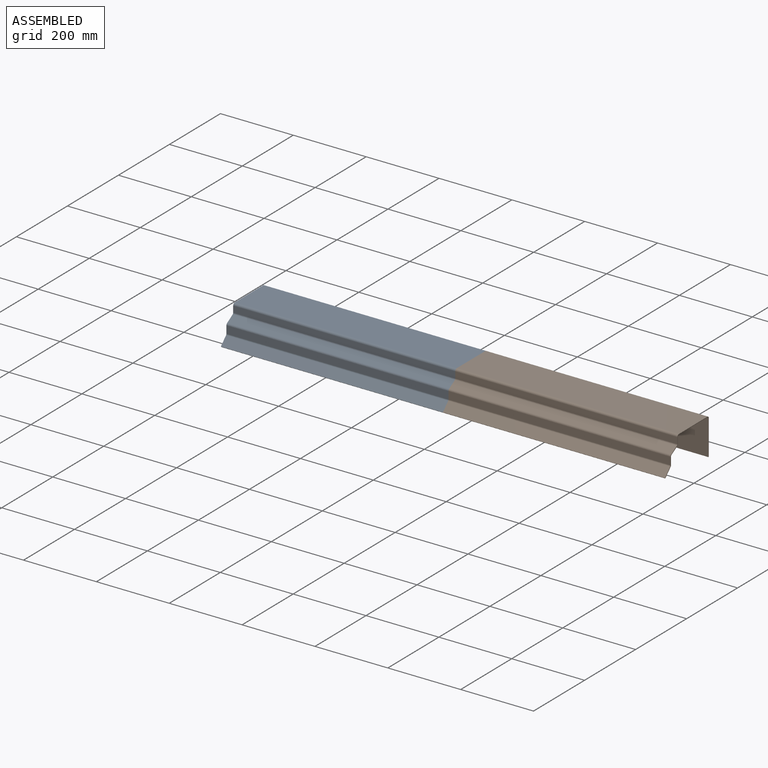
[diagram: assembled view]
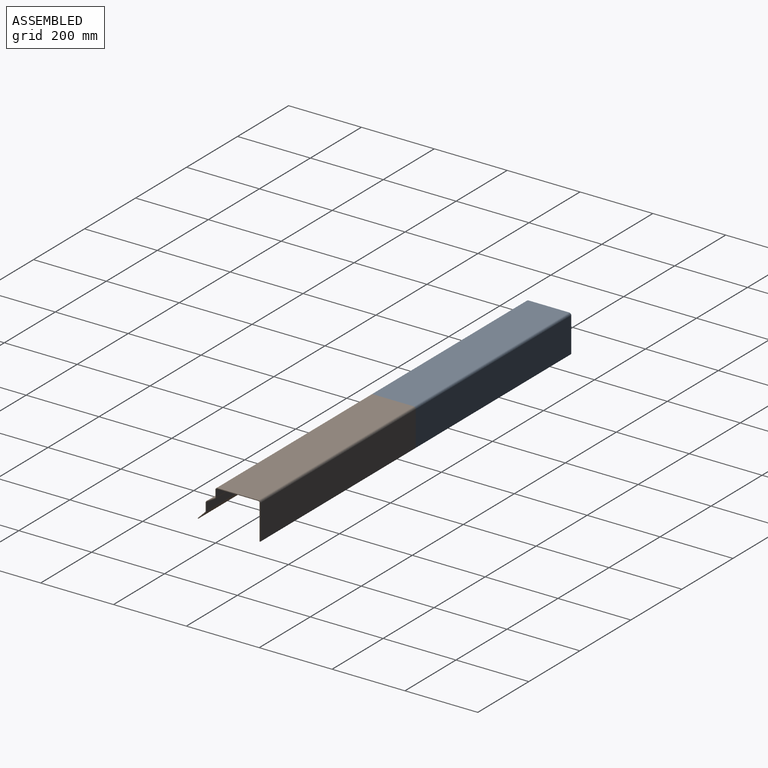
[diagram: assembled view, second angle]
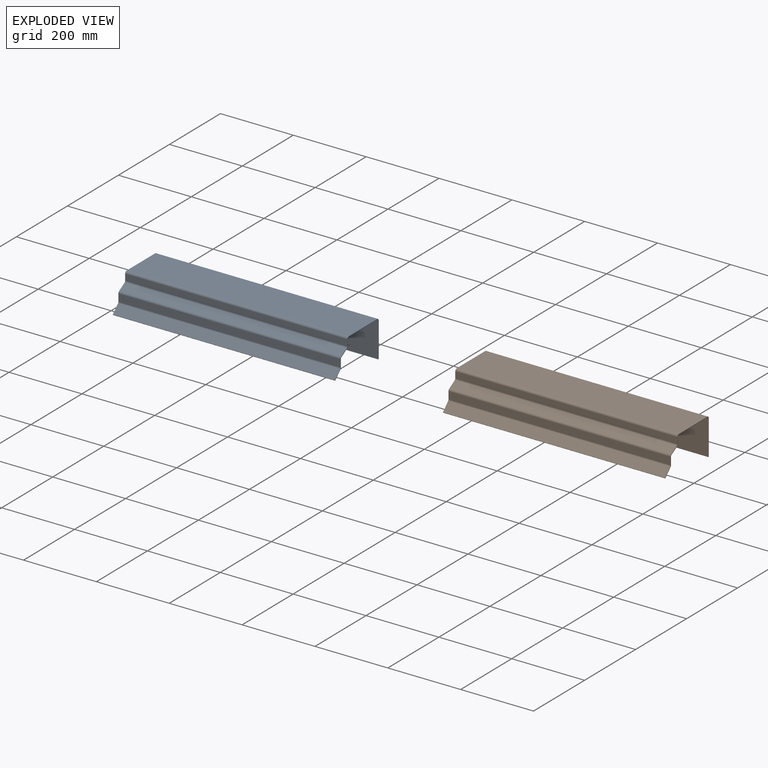
[diagram: exploded view]
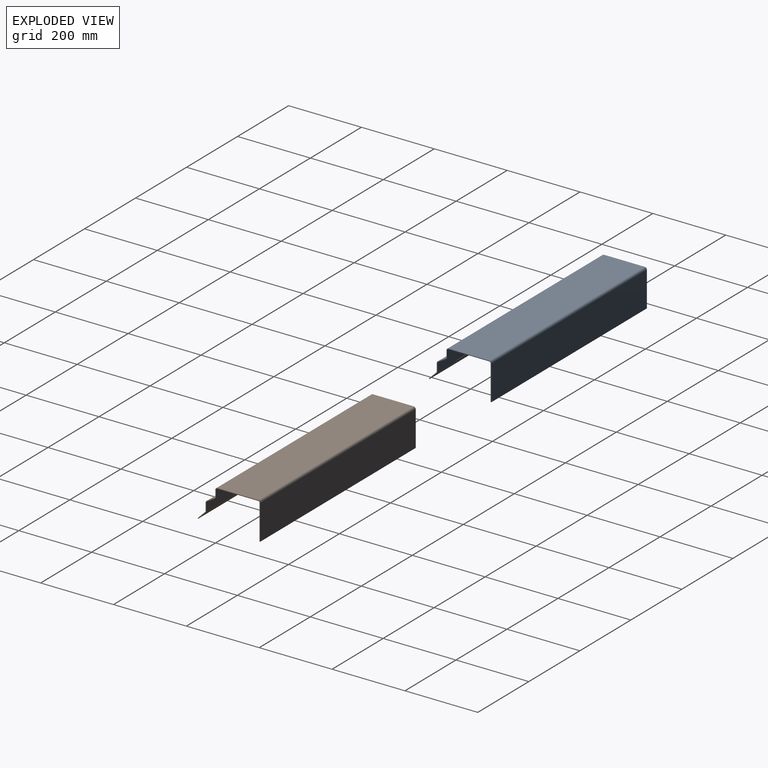
[diagram: exploded view, second angle]
ASSEMBLY  parts=2 mates=3
PART A: 46 faces, bbox 609.6x171.8x101.6 mm
  f0: plane 111.87x1.9mm, normal (-1,0,0), area 212.3mm2, adj f2,f3,f34,f43
  f1: plane 111.87x1.9mm, normal (1,0,0), area 212.3mm2, adj f2,f3,f33,f42
  f2: plane 609.6x111.87mm, normal (0,0,1), area 68197.2mm2, adj f0,f1,f35,f44
  f3: plane 609.6x111.87mm, normal (0,0,-1), area 68197.2mm2, adj f0,f1,f36,f45
  f4: plane 17.55x1.9mm, normal (-1,0,0), area 33.3mm2, adj f6,f7,f30,f34
  f5: plane 17.55x1.9mm, normal (1,0,0), area 33.3mm2, adj f6,f7,f29,f33
  f6: plane 609.6x17.55mm, normal (0,-1,0), area 10697.7mm2, adj f4,f5,f32,f35
  f7: plane 609.6x17.55mm, normal (0,1,0), area 10697.7mm2, adj f4,f5,f31,f36
  f8: plane 22.96x14.77mm, normal (-1,0,0), area 48.6mm2, adj f10,f11,f26,f30
  f9: plane 22.96x14.77mm, normal (1,0,0), area 48.6mm2, adj f10,f11,f25,f29
  f10: plane 609.6x21.99mm, normal (0,-0.51,0.86), area 15616.5mm2, adj f8,f9,f27,f32
  f11: plane 609.6x21.99mm, normal (0,0.51,-0.86), area 15616.5mm2, adj f8,f9,f28,f31
  f12: plane 20.86x1.9mm, normal (-1,0,0), area 39.6mm2, adj f14,f15,f22,f26
  f13: plane 20.86x1.9mm, normal (1,0,0), area 39.6mm2, adj f14,f15,f21,f25
  f14: plane 609.6x20.86mm, normal (0,-1,0), area 12714.3mm2, adj f12,f13,f24,f27
  f15: plane 609.6x20.86mm, normal (0,1,0), area 12714.3mm2, adj f12,f13,f23,f28
  f16: plane 609.6x1.34mm, normal (0,-0.71,-0.71), area 1156.6mm2, adj f17,f18,f19,f20
  f17: plane 22.12x22.12mm, normal (1,0,0), area 55.8mm2, adj f16,f19,f20,f21
  f18: plane 22.12x22.12mm, normal (-1,0,0), area 55.8mm2, adj f16,f19,f20,f22
  f19: plane 609.6x20.78mm, normal (0,-0.71,0.71), area 17913.7mm2, adj f16,f17,f18,f24
  f20: plane 609.6x20.78mm, normal (0,0.71,-0.71), area 17913.7mm2, adj f16,f17,f18,f23
  f21: plane 4.04x3.01mm, normal (1,0,0), area 7.1mm2, adj f13,f17,f23,f24
  f22: plane 4.04x3.01mm, normal (-1,0,0), area 7.1mm2, adj f12,f18,f23,f24
  f23: cylinder r=5.71mm len=609.6mm, axis (1,0,0), area 2732.6mm2, adj f15,f20,f21,f22
  f24: cylinder r=3.81mm len=609.6mm, axis (1,0,0), area 1824.1mm2, adj f14,f19,f21,f22
  f25: plane 4.9x3.75mm, normal (1,0,0), area 9.3mm2, adj f9,f13,f27,f28
  f26: plane 4.9x3.75mm, normal (-1,0,0), area 9.3mm2, adj f8,f12,f27,f28
  f27: cylinder r=5.71mm len=609.6mm, axis (1,0,0), area 3590.5mm2, adj f10,f14,f25,f26
  f28: cylinder r=3.81mm len=609.6mm, axis (1,0,0), area 2396.8mm2, adj f11,f15,f25,f26
  f29: plane 4.9x3.75mm, normal (1,0,0), area 9.3mm2, adj f5,f9,f31,f32
  f30: plane 4.9x3.75mm, normal (-1,0,0), area 9.3mm2, adj f4,f8,f31,f32
  f31: cylinder r=5.71mm len=609.6mm, axis (1,0,0), area 3590.5mm2, adj f7,f11,f29,f30
  f32: cylinder r=3.81mm len=609.6mm, axis (1,0,0), area 2396.8mm2, adj f6,f10,f29,f30
  f33: plane 5.71x5.71mm, normal (1,0,0), area 14.2mm2, adj f1,f5,f35,f36
  f34: plane 5.71x5.71mm, normal (-1,0,0), area 14.2mm2, adj f0,f4,f35,f36
  f35: cylinder r=5.71mm len=609.6mm, axis (1,0,0), area 5465.1mm2, adj f2,f6,f33,f34
  f36: cylinder r=3.81mm len=609.6mm, axis (1,0,0), area 3648.3mm2, adj f3,f7,f33,f34
  f37: plane 609.6x1.9mm, normal (0,0,-1), area 1156.6mm2, adj f38,f39,f40,f41
  f38: plane 95.89x1.9mm, normal (-1,0,0), area 181.9mm2, adj f37,f40,f41,f43
  f39: plane 95.89x1.9mm, normal (1,0,0), area 181.9mm2, adj f37,f40,f41,f42
  f40: plane 609.6x95.89mm, normal (0,1,0), area 58456.1mm2, adj f37,f38,f39,f44
  f41: plane 609.6x95.89mm, normal (0,-1,0), area 58456.1mm2, adj f37,f38,f39,f45
  f42: plane 5.71x5.71mm, normal (1,0,0), area 14.2mm2, adj f1,f39,f44,f45
  f43: plane 5.71x5.71mm, normal (-1,0,0), area 14.2mm2, adj f0,f38,f44,f45
  f44: cylinder r=5.71mm len=609.6mm, axis (1,0,0), area 5465.1mm2, adj f2,f40,f42,f43
  f45: cylinder r=3.81mm len=609.6mm, axis (1,0,0), area 3648.3mm2, adj f3,f41,f42,f43
PART B: same geometry as A
PLACE A t=(-249.5,101.57,389.47)mm
PLACE B t=(360.1,101.57,389.47)mm
MATE planar A.f6 <-> B.f6  axis (0,-1,0) through (55.3,-21.72,376.89)mm
MATE planar A.f1 <-> B.f0  axis (1,0,0) through (360.1,39.93,390.42)mm
MATE planar A.f2 <-> B.f2  axis (0,0,1) through (55.3,39.93,391.37)mm
